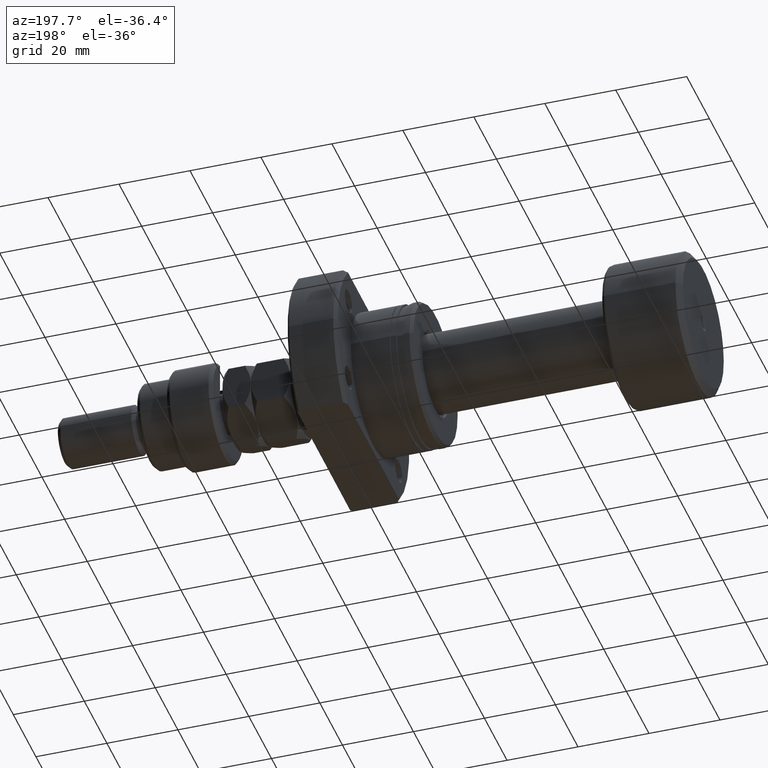
[diagram: clean part render]
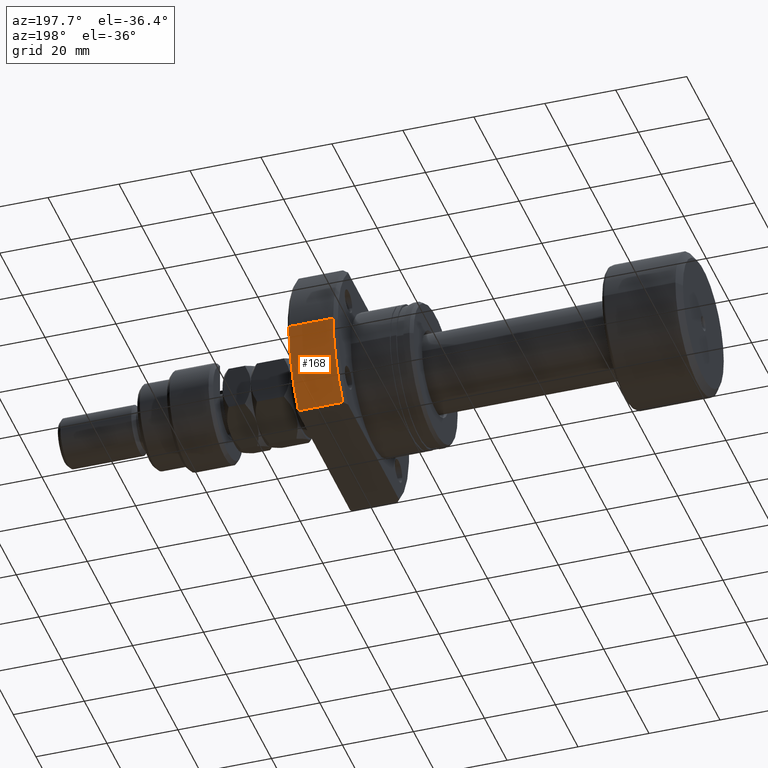
[diagram: same view with one face highlighted and labeled with its STEP entity id]
A machine part, auxiliary view. The second image highlights one B-rep face of the part: STEP entity #168.
In plain terms, the highlighted cylindrical surface (partial cylindrical patch) has radius 32.5 mm, axis along (1, 0, 0).
Its self-contained STEP definition (entity closure, byte-faithful):
#8 = VERTEX_POINT ( 'NONE', #5212 ) ;
#130 = DIRECTION ( 'NONE',  ( 1.000000000000000000, 2.721437331438560389E-17, -0.000000000000000000 ) ) ;
#168 = ADVANCED_FACE ( 'NONE', ( #4813 ), #3952, .T. ) ;
#185 = EDGE_CURVE ( 'NONE', #5701, #3267, #3035, .T. ) ;
#211 = DIRECTION ( 'NONE',  ( 1.000000000000000000, 2.721437331438560389E-17, -0.000000000000000000 ) ) ;
#419 = VECTOR ( 'NONE', #611, 1000.000000000000000 ) ;
#611 = DIRECTION ( 'NONE',  ( 1.000000000000000000, 2.721437331438560389E-17, -0.000000000000000000 ) ) ;
#621 = ORIENTED_EDGE ( 'NONE', *, *, #5432, .T. ) ;
#802 = CARTESIAN_POINT ( 'NONE',  ( 18.49999999999998934, 23.92174742781163133, -21.99999999999998934 ) ) ;
#904 = DIRECTION ( 'NONE',  ( 1.000000000000000000, -2.886466111666351885E-14, -0.000000000000000000 ) ) ;
#1088 = DIRECTION ( 'NONE',  ( 0.000000000000000000, 1.000000000000000000, 0.000000000000000000 ) ) ;
#1639 = DIRECTION ( 'NONE',  ( 0.000000000000000000, 1.000000000000000000, 0.000000000000000000 ) ) ;
#1666 = DIRECTION ( 'NONE',  ( 1.000000000000000000, 2.721437331438560389E-17, -0.000000000000000000 ) ) ;
#1746 = EDGE_CURVE ( 'NONE', #8, #3267, #5138, .T. ) ;
#2064 = CARTESIAN_POINT ( 'NONE',  ( 18.49999999999998934, 5.034659063161333869E-16, 0.000000000000000000 ) ) ;
#2088 = CARTESIAN_POINT ( 'NONE',  ( 31.50000000000000000, 8.572527594031465301E-16, 0.000000000000000000 ) ) ;
#2279 = AXIS2_PLACEMENT_3D ( 'NONE', #2088, #1666, #1639 ) ;
#2339 = CARTESIAN_POINT ( 'NONE',  ( 18.49999999999998934, 32.49999999999990763, 0.000000000000000000 ) ) ;
#2436 = VERTEX_POINT ( 'NONE', #802 ) ;
#2988 = CARTESIAN_POINT ( 'NONE',  ( 31.00000000000008171, 32.49999999999990763, 0.000000000000000000 ) ) ;
#3035 = LINE ( 'NONE', #3453, #419 ) ;
#3260 = ORIENTED_EDGE ( 'NONE', *, *, #3334, .F. ) ;
#3267 = VERTEX_POINT ( 'NONE', #2988 ) ;
#3289 = AXIS2_PLACEMENT_3D ( 'NONE', #2064, #211, #5775 ) ;
#3334 = EDGE_CURVE ( 'NONE', #2436, #8, #3724, .T. ) ;
#3453 = CARTESIAN_POINT ( 'NONE',  ( 31.50000000000000000, 32.49999999999990763, 0.000000000000000000 ) ) ;
#3670 = VECTOR ( 'NONE', #904, 1000.000000000000000 ) ;
#3719 = ORIENTED_EDGE ( 'NONE', *, *, #1746, .F. ) ;
#3724 = LINE ( 'NONE', #5973, #3670 ) ;
#3952 = CYLINDRICAL_SURFACE ( 'NONE', #2279, 32.49999999999990763 ) ;
#4183 = CIRCLE ( 'NONE', #3289, 32.49999999999990763 ) ;
#4813 = FACE_OUTER_BOUND ( 'NONE', #5797, .T. ) ;
#5138 = CIRCLE ( 'NONE', #5405, 32.49999999999990763 ) ;
#5212 = CARTESIAN_POINT ( 'NONE',  ( 31.00000000000007461, 23.92174742781126895, -21.99999999999998934 ) ) ;
#5260 = CARTESIAN_POINT ( 'NONE',  ( 31.00000000000008171, 8.436455727459560039E-16, 0.000000000000000000 ) ) ;
#5405 = AXIS2_PLACEMENT_3D ( 'NONE', #5260, #130, #1088 ) ;
#5432 = EDGE_CURVE ( 'NONE', #2436, #5701, #4183, .T. ) ;
#5701 = VERTEX_POINT ( 'NONE', #2339 ) ;
#5775 = DIRECTION ( 'NONE',  ( 0.000000000000000000, 1.000000000000000000, 0.000000000000000000 ) ) ;
#5797 = EDGE_LOOP ( 'NONE', ( #621, #5861, #3719, #3260 ) ) ;
#5861 = ORIENTED_EDGE ( 'NONE', *, *, #185, .T. ) ;
#5973 = CARTESIAN_POINT ( 'NONE',  ( -2.498001805406602216E-13, 23.92174742781216423, -21.99999999999998934 ) ) ;